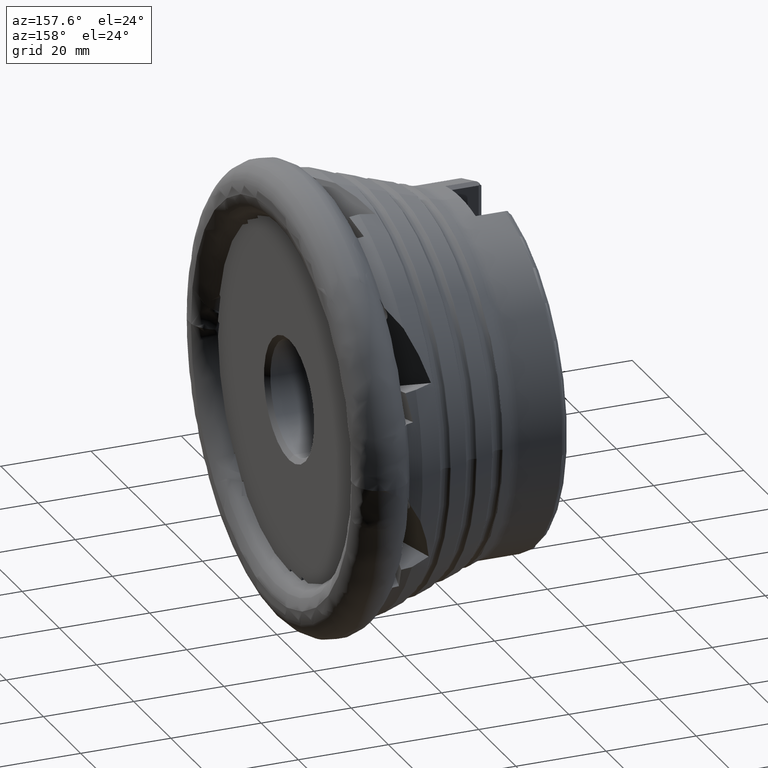
[diagram: clean part render]
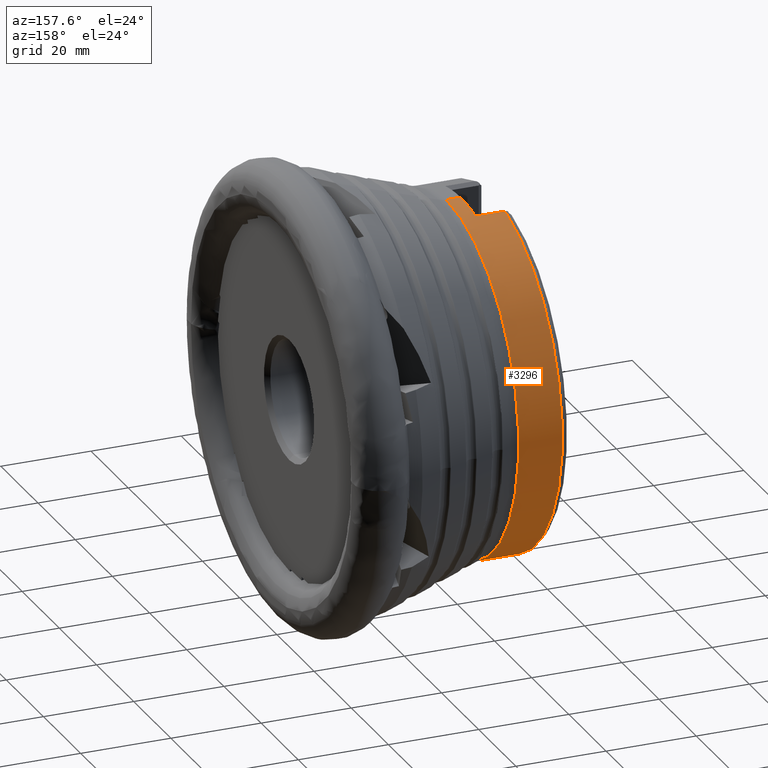
[diagram: same view with one face highlighted and labeled with its STEP entity id]
A machine part, auxiliary view. The second image highlights one B-rep face of the part: STEP entity #3296.
In plain terms, the highlighted cylindrical surface (partial cylindrical patch) has radius 39 mm, axis along (1, -0, -0).
Its self-contained STEP definition (entity closure, byte-faithful):
#86 = CARTESIAN_POINT ( 'NONE',  ( -40.69999999999999600, 4.776122516674677900E-015, 39.00000000000000000 ) ) ;
#93 = VECTOR ( 'NONE', #4975, 1000.000000000000000 ) ;
#215 = VERTEX_POINT ( 'NONE', #86 ) ;
#236 = DIRECTION ( 'NONE',  ( 1.000000000000000000, -0.0000000000000000000, -0.0000000000000000000 ) ) ;
#579 = LINE ( 'NONE', #7170, #9055 ) ;
#848 = AXIS2_PLACEMENT_3D ( 'NONE', #9125, #5796, #4040 ) ;
#874 = DIRECTION ( 'NONE',  ( 0.0000000000000000000, 0.0000000000000000000, -1.000000000000000000 ) ) ;
#1014 = EDGE_CURVE ( 'NONE', #2802, #5833, #8114, .T. ) ;
#1048 = ORIENTED_EDGE ( 'NONE', *, *, #10194, .F. ) ;
#1099 = VECTOR ( 'NONE', #2229, 1000.000000000000000 ) ;
#1149 = ORIENTED_EDGE ( 'NONE', *, *, #1014, .F. ) ;
#1449 = ORIENTED_EDGE ( 'NONE', *, *, #7590, .T. ) ;
#1598 = CARTESIAN_POINT ( 'NONE',  ( 0.0000000000000000000, 0.0000000000000000000, 0.0000000000000000000 ) ) ;
#2016 = LINE ( 'NONE', #8162, #1099 ) ;
#2229 = DIRECTION ( 'NONE',  ( 1.000000000000000000, -0.0000000000000000000, -0.0000000000000000000 ) ) ;
#2277 = CIRCLE ( 'NONE', #6640, 39.00000000000000000 ) ;
#2326 = ORIENTED_EDGE ( 'NONE', *, *, #6814, .T. ) ;
#2498 = DIRECTION ( 'NONE',  ( 0.0000000000000000000, 2.664535259100375700E-015, -1.000000000000000000 ) ) ;
#2620 = AXIS2_PLACEMENT_3D ( 'NONE', #4214, #10142, #874 ) ;
#2802 = VERTEX_POINT ( 'NONE', #9908 ) ;
#3148 = VECTOR ( 'NONE', #236, 1000.000000000000000 ) ;
#3287 = CARTESIAN_POINT ( 'NONE',  ( -40.69999999999999600, 8.168213455381986100, 38.13502706105394700 ) ) ;
#3296 = ADVANCED_FACE ( 'NONE', ( #4791 ), #7987, .T. ) ;
#3437 = DIRECTION ( 'NONE',  ( -1.000000000000000000, -0.0000000000000000000, -0.0000000000000000000 ) ) ;
#3568 = ORIENTED_EDGE ( 'NONE', *, *, #6193, .T. ) ;
#3810 = DIRECTION ( 'NONE',  ( 1.000000000000000000, -0.0000000000000000000, -0.0000000000000000000 ) ) ;
#3921 = CARTESIAN_POINT ( 'NONE',  ( -47.19999999999999600, 8.168213455381986100, 38.13502706105394000 ) ) ;
#4040 = DIRECTION ( 'NONE',  ( 0.0000000000000000000, 0.0000000000000000000, -1.000000000000000000 ) ) ;
#4064 = CARTESIAN_POINT ( 'NONE',  ( -6.594688383663043700E-031, 8.168213455381979000, -38.13502706105394000 ) ) ;
#4214 = CARTESIAN_POINT ( 'NONE',  ( -47.19999999999999600, 0.0000000000000000000, 0.0000000000000000000 ) ) ;
#4328 = CARTESIAN_POINT ( 'NONE',  ( -40.69999999999999600, 8.168213455381984300, -38.13502706105394700 ) ) ;
#4599 = LINE ( 'NONE', #4064, #93 ) ;
#4631 = ORIENTED_EDGE ( 'NONE', *, *, #10795, .F. ) ;
#4791 = FACE_OUTER_BOUND ( 'NONE', #5678, .T. ) ;
#4975 = DIRECTION ( 'NONE',  ( -1.000000000000000000, 0.0000000000000000000, 0.0000000000000000000 ) ) ;
#5033 = CARTESIAN_POINT ( 'NONE',  ( -40.69999999999999600, 0.0000000000000000000, 0.0000000000000000000 ) ) ;
#5506 = AXIS2_PLACEMENT_3D ( 'NONE', #6857, #3437, #8559 ) ;
#5562 = DIRECTION ( 'NONE',  ( 1.000000000000000000, -0.0000000000000000000, -0.0000000000000000000 ) ) ;
#5591 = CARTESIAN_POINT ( 'NONE',  ( -40.69999999999999600, 0.0000000000000000000, -39.00000000000000000 ) ) ;
#5630 = ORIENTED_EDGE ( 'NONE', *, *, #8874, .F. ) ;
#5678 = EDGE_LOOP ( 'NONE', ( #4631, #9581, #1149, #5630, #1048, #3568, #1449, #2326 ) ) ;
#5796 = DIRECTION ( 'NONE',  ( 1.000000000000000000, -0.0000000000000000000, -0.0000000000000000000 ) ) ;
#5833 = VERTEX_POINT ( 'NONE', #6615 ) ;
#6193 = EDGE_CURVE ( 'NONE', #10860, #8599, #4599, .T. ) ;
#6534 = CARTESIAN_POINT ( 'NONE',  ( -47.19999999999999600, 8.168213455381989600, -38.13502706105394000 ) ) ;
#6615 = CARTESIAN_POINT ( 'NONE',  ( -37.50163531802441200, 4.776122516674677900E-015, 39.00000000000000000 ) ) ;
#6640 = AXIS2_PLACEMENT_3D ( 'NONE', #5033, #7616, #2498 ) ;
#6814 = EDGE_CURVE ( 'NONE', #7373, #10313, #7674, .T. ) ;
#6857 = CARTESIAN_POINT ( 'NONE',  ( -40.69999999999999600, 0.0000000000000000000, 0.0000000000000000000 ) ) ;
#7155 = VERTEX_POINT ( 'NONE', #5591 ) ;
#7170 = CARTESIAN_POINT ( 'NONE',  ( 0.0000000000000000000, 0.0000000000000000000, -39.00000000000000000 ) ) ;
#7373 = VERTEX_POINT ( 'NONE', #3921 ) ;
#7590 = EDGE_CURVE ( 'NONE', #8599, #7373, #10472, .T. ) ;
#7616 = DIRECTION ( 'NONE',  ( -1.000000000000000000, -0.0000000000000000000, -0.0000000000000000000 ) ) ;
#7674 = LINE ( 'NONE', #8678, #3148 ) ;
#7987 = CYLINDRICAL_SURFACE ( 'NONE', #9369, 39.00000000000000000 ) ;
#8114 = CIRCLE ( 'NONE', #848, 39.00000000000000000 ) ;
#8162 = CARTESIAN_POINT ( 'NONE',  ( 0.0000000000000000000, 4.776122516674677900E-015, 39.00000000000000000 ) ) ;
#8326 = CIRCLE ( 'NONE', #5506, 39.00000000000000000 ) ;
#8559 = DIRECTION ( 'NONE',  ( 0.0000000000000000000, 0.0000000000000000000, -1.000000000000000000 ) ) ;
#8599 = VERTEX_POINT ( 'NONE', #6534 ) ;
#8678 = CARTESIAN_POINT ( 'NONE',  ( -6.594688383663043700E-031, 8.168213455381979000, 38.13502706105394000 ) ) ;
#8874 = EDGE_CURVE ( 'NONE', #7155, #2802, #579, .T. ) ;
#8910 = EDGE_CURVE ( 'NONE', #215, #5833, #2016, .T. ) ;
#9055 = VECTOR ( 'NONE', #3810, 1000.000000000000000 ) ;
#9125 = CARTESIAN_POINT ( 'NONE',  ( -37.50163531802441200, 0.0000000000000000000, 0.0000000000000000000 ) ) ;
#9369 = AXIS2_PLACEMENT_3D ( 'NONE', #1598, #5562, #9733 ) ;
#9581 = ORIENTED_EDGE ( 'NONE', *, *, #8910, .T. ) ;
#9733 = DIRECTION ( 'NONE',  ( 0.0000000000000000000, 0.0000000000000000000, -1.000000000000000000 ) ) ;
#9908 = CARTESIAN_POINT ( 'NONE',  ( -37.50163531802441200, 0.0000000000000000000, -39.00000000000000000 ) ) ;
#10142 = DIRECTION ( 'NONE',  ( 1.000000000000000000, -0.0000000000000000000, -0.0000000000000000000 ) ) ;
#10194 = EDGE_CURVE ( 'NONE', #10860, #7155, #2277, .T. ) ;
#10313 = VERTEX_POINT ( 'NONE', #3287 ) ;
#10472 = CIRCLE ( 'NONE', #2620, 39.00000000000000000 ) ;
#10795 = EDGE_CURVE ( 'NONE', #215, #10313, #8326, .T. ) ;
#10860 = VERTEX_POINT ( 'NONE', #4328 ) ;